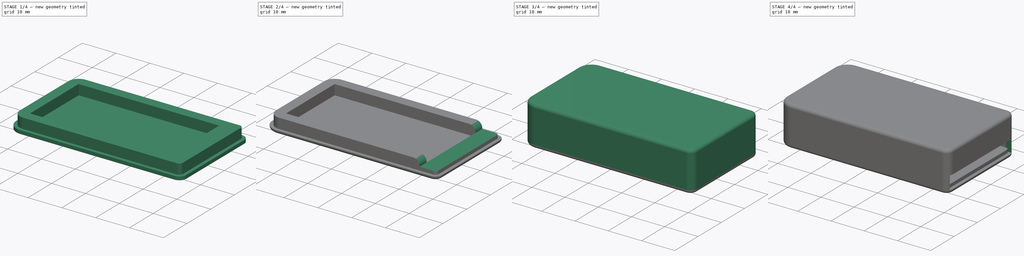
[diagram: build sequence overview — one tinted view per stage of 4, left to right]
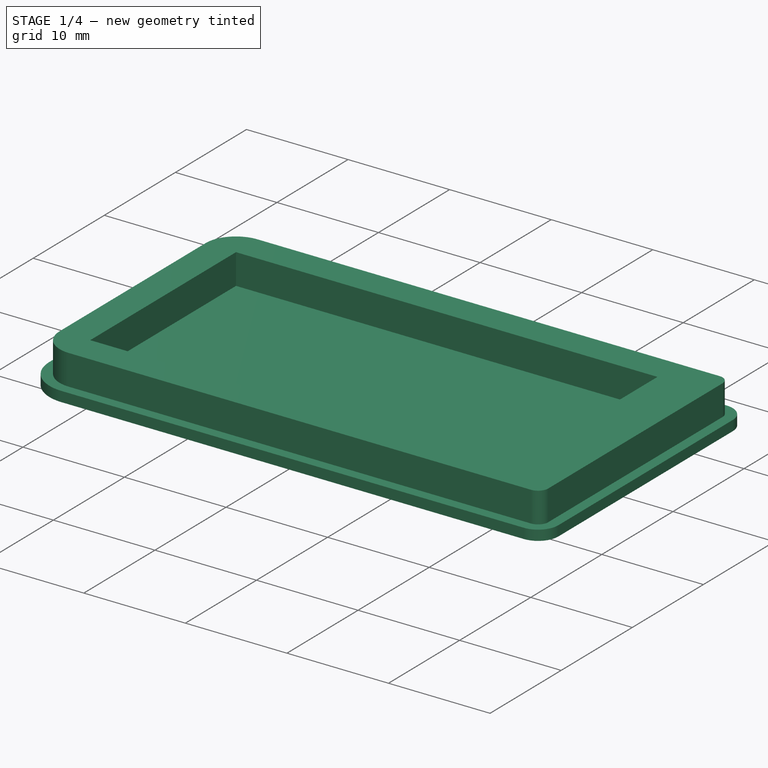
[diagram: stage 1 of 4 — iso view after this stage's code; geometry added in this stage tinted green]
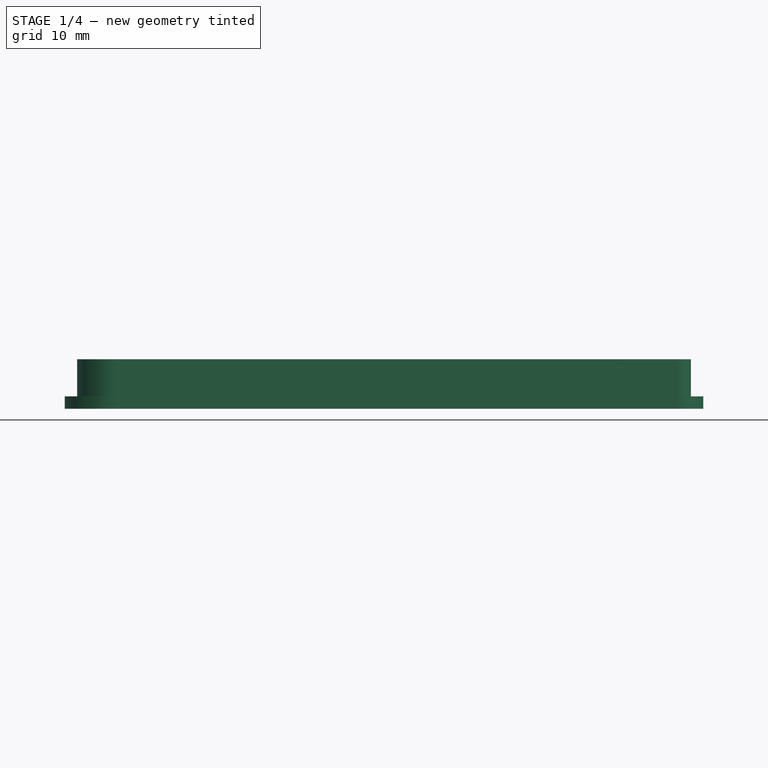
[diagram: stage 1 of 4 — front view after this stage's code; geometry added in this stage tinted green]
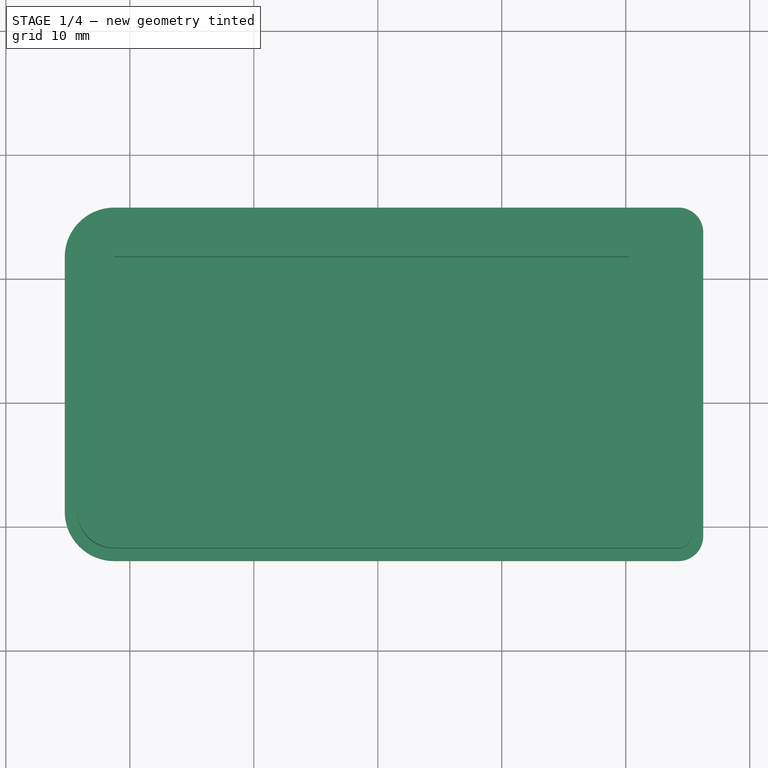
[diagram: stage 1 of 4 — top view after this stage's code; geometry added in this stage tinted green]
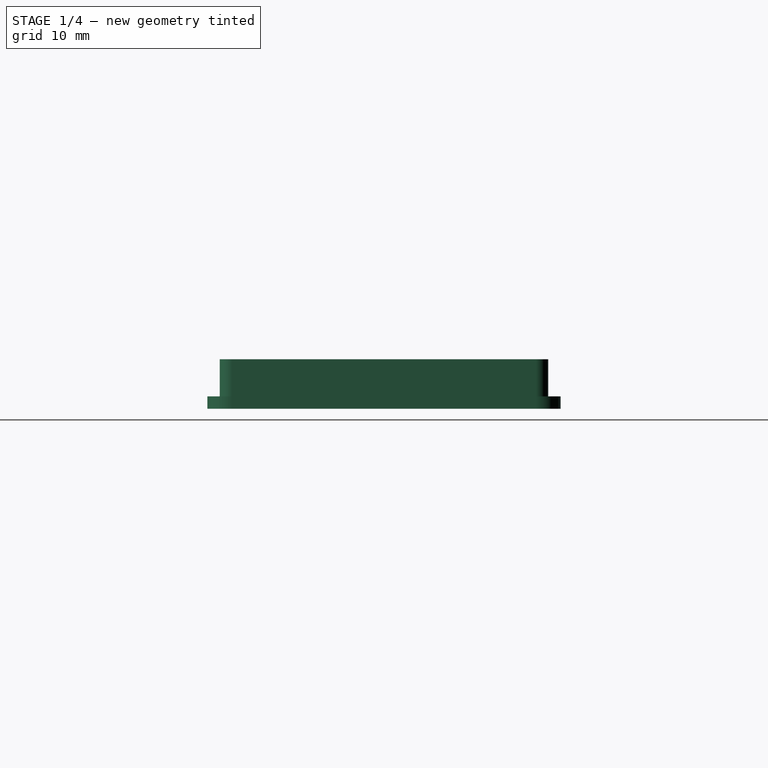
[diagram: stage 1 of 4 — right view after this stage's code; geometry added in this stage tinted green]
FCSTD DOCUMENT  (FreeCAD 0.20R29177 +426 (Git))
Label: UINIO-Logic-24MHz-Shells
License: All rights reserved
LicenseURL: http://en.wikipedia.org/wiki/All_rights_reserved
objects: Sketcher::SketchObject×9, PartDesign::Pocket×5, PartDesign::Pad×4, PartDesign::Body×2, PartDesign::Fillet×2, PartDesign::Thickness×1, App::Part×1
note: 35 computed .brp shape members not serialized (recipe doc carries the construction recipe); baked Part::Feature solids carry a one-line shape summary decoded from their .brp

FEATURE [Sketcher::SketchObject] Sketch004
  FullyConstrained = true
  MapMode = 5
  Support = -> [XY_Plane002]
  sketch-geometry (8):
    g0: LineSegment StartX=-21.25 StartY=14.75 StartZ=0 EndX=24.25 EndY=14.75 EndZ=0
    g1: LineSegment StartX=25.25 StartY=13.75 StartZ=0 EndX=25.25 EndY=-10.75 EndZ=0
    g2: LineSegment StartX=24.25 StartY=-11.75 StartZ=0 EndX=-21.25 EndY=-11.75 EndZ=0
    g3: LineSegment StartX=-24.25 StartY=-8.75 StartZ=0 EndX=-24.25 EndY=11.75 EndZ=0
    g4: ArcOfCircle CenterX=24.25 CenterY=13.75 CenterZ=0 NormalX=0 NormalY=0 NormalZ=1 AngleXU=0 Radius=1 StartAngle=2e-16 EndAngle=1.5708
    g5: ArcOfCircle CenterX=-21.25 CenterY=11.75 CenterZ=0 NormalX=0 NormalY=0 NormalZ=1 AngleXU=0 Radius=3 StartAngle=1.5708 EndAngle=3.14159
    g6: ArcOfCircle CenterX=-21.25 CenterY=-8.75 CenterZ=0 NormalX=0 NormalY=0 NormalZ=1 AngleXU=0 Radius=3 StartAngle=3.14159 EndAngle=4.71239
    g7: ArcOfCircle CenterX=24.25 CenterY=-10.75 CenterZ=0 NormalX=0 NormalY=0 NormalZ=1 AngleXU=0 Radius=1 StartAngle=4.71239 EndAngle=6.28319
  constraints (19):
    c: Horizontal(g0)
    c: Horizontal(g2)
    c: Vertical(g1)
    c: Vertical(g3)
    c: Tangent(g0,g4) = 1.5708
    c: Tangent(g1,g4) = 1.5708
    c: Tangent(g0,g5) = 1.5708
    c: Tangent(g3,g5) = 1.5708
    c: Tangent(g2,g6) = 1.5708
    c: Tangent(g3,g6) = 1.5708
    c: Tangent(g1,g7) = 1.5708
    c: Tangent(g2,g7) = 1.5708
    c: Radius(g5) = 3
    c: Radius(g4) = 1
    c: Radius(g7) = 1
    c: Radius(g6) = 3
    c: Symmetric(g3,g2,g-1)
    c: Distance(g0,g2) = 26.5
    c: Distance(g3,g1) = 49.5
FEATURE [PartDesign::Pad] Pad002
  Direction = (0,0,1)
  Length = 3
  Length2 = 10
  Profile = -> Sketch004
  ReferenceAxis = -> Sketch004 [N_Axis]
  Type = 0
FEATURE [Sketcher::SketchObject] Sketch005
  ExternalGeometry = -> [Pad002]
  FullyConstrained = true
  MapMode = 5
  Placement = pos=(0,0,0) rot=(1,0,0;3.14159rad)
  Support = -> [Pad002]
  sketch-geometry (8):
    g0: LineSegment StartX=-21.25 StartY=12.75 StartZ=0 EndX=24.25 EndY=12.75 EndZ=0
    g1: LineSegment StartX=26.25 StartY=10.75 StartZ=0 EndX=26.25 EndY=-13.75 EndZ=0
    g2: LineSegment StartX=24.25 StartY=-15.75 StartZ=0 EndX=-21.25 EndY=-15.75 EndZ=0
    g3: LineSegment StartX=-25.25 StartY=-11.75 StartZ=0 EndX=-25.25 EndY=8.75 EndZ=0
    g4: ArcOfCircle CenterX=-21.25 CenterY=-11.75 CenterZ=0 NormalX=0 NormalY=0 NormalZ=1 AngleXU=0 Radius=4 StartAngle=3.14159 EndAngle=4.71239
    g5: ArcOfCircle CenterX=-21.25 CenterY=8.75 CenterZ=0 NormalX=0 NormalY=0 NormalZ=1 AngleXU=0 Radius=4 StartAngle=1.5708 EndAngle=3.14159
    g6: ArcOfCircle CenterX=24.25 CenterY=10.75 CenterZ=0 NormalX=0 NormalY=0 NormalZ=1 AngleXU=0 Radius=2 StartAngle=0 EndAngle=1.5708
    g7: ArcOfCircle CenterX=24.25 CenterY=-13.75 CenterZ=0 NormalX=0 NormalY=0 NormalZ=1 AngleXU=0 Radius=2 StartAngle=4.71239 EndAngle=6.28319
  constraints (20):
    c: Horizontal(g0)
    c: Horizontal(g2)
    c: Vertical(g1)
    c: Vertical(g3)
    c: Distance(g-6,g3) = 1
    c: Distance(g-4,g0) = 1
    c: Distance(g-3,g1) = 1
    c: Distance(g-5,g2) = 1
    c: Tangent(g2,g4) = 1.5708
    c: Tangent(g3,g4) = 1.5708
    c: Tangent(g0,g5) = 1.5708
    c: Tangent(g3,g5) = 1.5708
    c: Tangent(g0,g6) = 1.5708
    c: Tangent(g1,g6) = 1.5708
    c: Tangent(g1,g7) = 1.5708
    c: Tangent(g2,g7) = 1.5708
    c: Radius(g5) = 4
    c: Radius(g4) = 4
    c: Radius(g7) = 2
    c: Radius(g6) = 2
FEATURE [PartDesign::Pad] Pad003
  BaseFeature = -> Pad002
  Direction = (0,0,-1)
  Length = 1
  Length2 = 10
  Profile = -> Sketch005
  ReferenceAxis = -> Sketch005 [N_Axis]
  Type = 0
FEATURE [PartDesign::Body] Body  label="Bottom"
  Group = -> [Sketch,Pad,Thickness,Sketch001,Pad001,Sketch002,Pocket,Sketch003,Pocket001,Sketch006,Pocket002]
  Origin = -> Origin001
  Tip = -> Pocket002
FEATURE [App::Part] Part
  Group = -> [Body]
  Origin = -> Origin
FEATURE [Sketcher::SketchObject] Sketch007
  ExternalGeometry = -> [Pad003]
  FullyConstrained = true
  MapMode = 5
  Placement = pos=(0,0,3) rot=(0,0,1;0rad)
  Support = -> [Pad003]
  sketch-geometry (4):
    g0: LineSegment StartX=-21.25 StartY=11.75 StartZ=0 EndX=20.25 EndY=11.75 EndZ=0
    g1: LineSegment StartX=20.25 StartY=11.75 StartZ=0 EndX=20.25 EndY=-8.75 EndZ=0
    g2: LineSegment StartX=20.25 StartY=-8.75 StartZ=0 EndX=-21.25 EndY=-8.75 EndZ=0
    g3: LineSegment StartX=-21.25 StartY=-8.75 StartZ=0 EndX=-21.25 EndY=11.75 EndZ=0
  constraints (12):
    c: Coincident(g0,g1)
    c: Coincident(g1,g2)
    c: Coincident(g2,g3)
    c: Coincident(g3,g0)
    c: Horizontal(g0)
    c: Horizontal(g2)
    c: Vertical(g1)
    c: Vertical(g3)
    c: Distance(g2,g-4) = 3
    c: Distance(g0,g-5) = 3
    c: Distance(g1,g-3) = 3
    c: Distance(g1,g-6) = 5
FEATURE [PartDesign::Pocket] Pocket003
  BaseFeature = -> Pad003
  Direction = (0,0,-1)
  Length = 3
  Length2 = 5
  Profile = -> Sketch007
  ReferenceAxis = -> Sketch007 [N_Axis]
  Type = 0
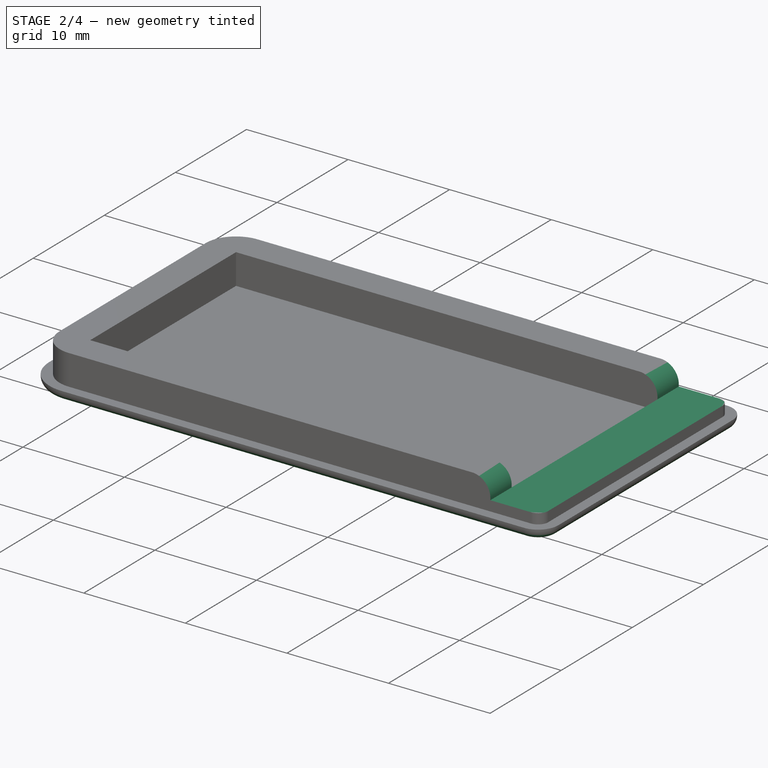
[diagram: stage 2 of 4 — iso view after this stage's code; geometry added in this stage tinted green]
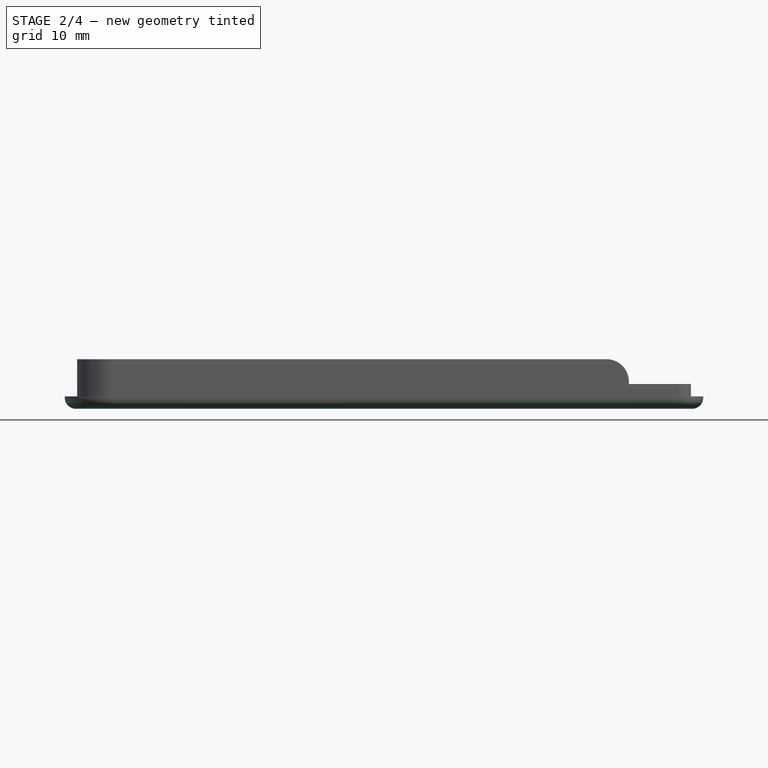
[diagram: stage 2 of 4 — front view after this stage's code; geometry added in this stage tinted green]
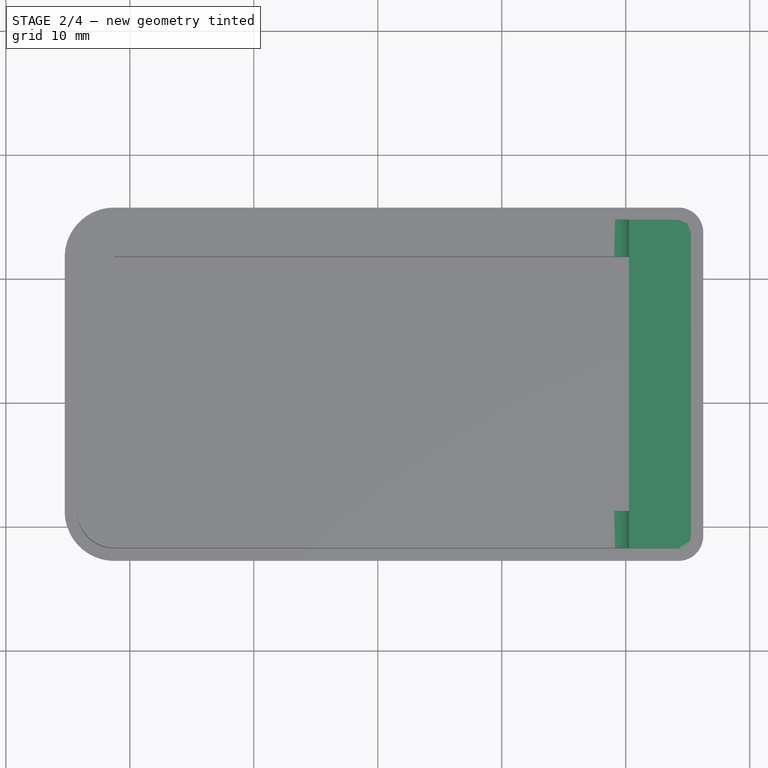
[diagram: stage 2 of 4 — top view after this stage's code; geometry added in this stage tinted green]
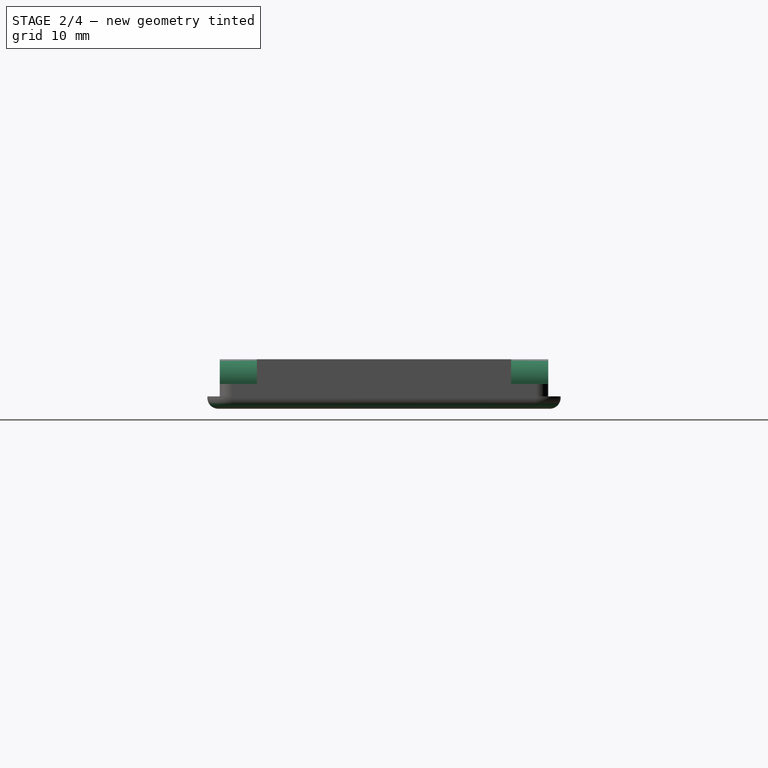
[diagram: stage 2 of 4 — right view after this stage's code; geometry added in this stage tinted green]
FEATURE [Sketcher::SketchObject] Sketch008
  ExternalGeometry = -> [Pocket003]
  FullyConstrained = true
  MapMode = 5
  Placement = pos=(0,0,3) rot=(0,0,1;0rad)
  Support = -> [Pocket003]
  sketch-geometry (4):
    g0: LineSegment StartX=20.25 StartY=14.75 StartZ=0 EndX=25.25 EndY=14.75 EndZ=0
    g1: LineSegment StartX=25.25 StartY=14.75 StartZ=0 EndX=25.25 EndY=-11.75 EndZ=0
    g2: LineSegment StartX=25.25 StartY=-11.75 StartZ=0 EndX=20.25 EndY=-11.75 EndZ=0
    g3: LineSegment StartX=20.25 StartY=-11.75 StartZ=0 EndX=20.25 EndY=14.75 EndZ=0
  constraints (12):
    c: Coincident(g0,g1)
    c: Coincident(g1,g2)
    c: Coincident(g2,g3)
    c: Coincident(g3,g0)
    c: Horizontal(g0)
    c: Horizontal(g2)
    c: Vertical(g1)
    c: Vertical(g3)
    c: PointOnObject(g1,g-3)
    c: PointOnObject(g2,g-5)
    c: Vertical(g2,g-4)
    c: PointOnObject(g0,g-6)
FEATURE [PartDesign::Pocket] Pocket004
  BaseFeature = -> Pocket003
  Direction = (0,0,-1)
  Length = 2
  Length2 = 5
  Profile = -> Sketch008
  ReferenceAxis = -> Sketch008 [N_Axis]
  Type = 0
FEATURE [PartDesign::Fillet] Fillet
  Base = -> Pocket004 [Edge53,Edge57]
  BaseFeature = -> Pocket004
  Radius = 1.8
  SupportTransform = false
  UseAllEdges = false
FEATURE [PartDesign::Fillet] Fillet001
  Base = -> Fillet [Edge67]
  BaseFeature = -> Fillet
  Radius = 0.9
  SupportTransform = false
  UseAllEdges = false
FEATURE [PartDesign::Body] Body001  label="Top"
  Group = -> [Sketch004,Pad002,Sketch005,Pad003,Sketch007,Pocket003,Sketch008,Pocket004,Fillet,Fillet001]
  Origin = -> Origin002
  Tip = -> Fillet001
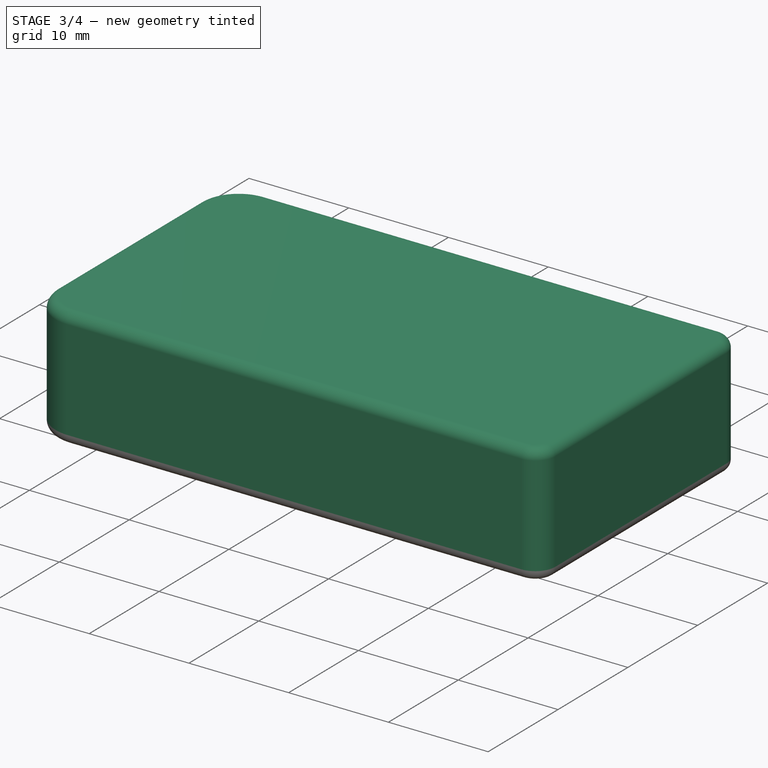
[diagram: stage 3 of 4 — iso view after this stage's code; geometry added in this stage tinted green]
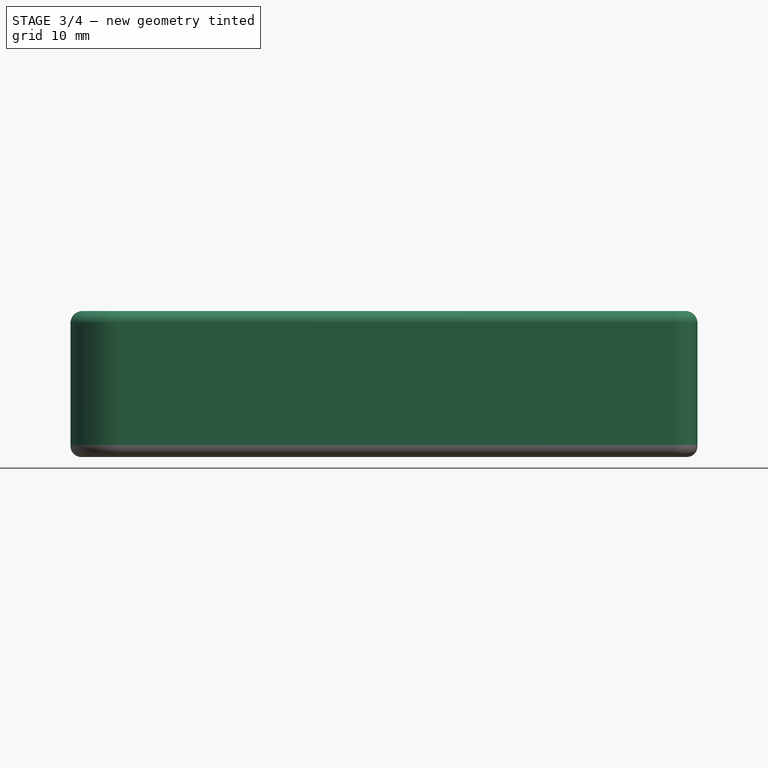
[diagram: stage 3 of 4 — front view after this stage's code; geometry added in this stage tinted green]
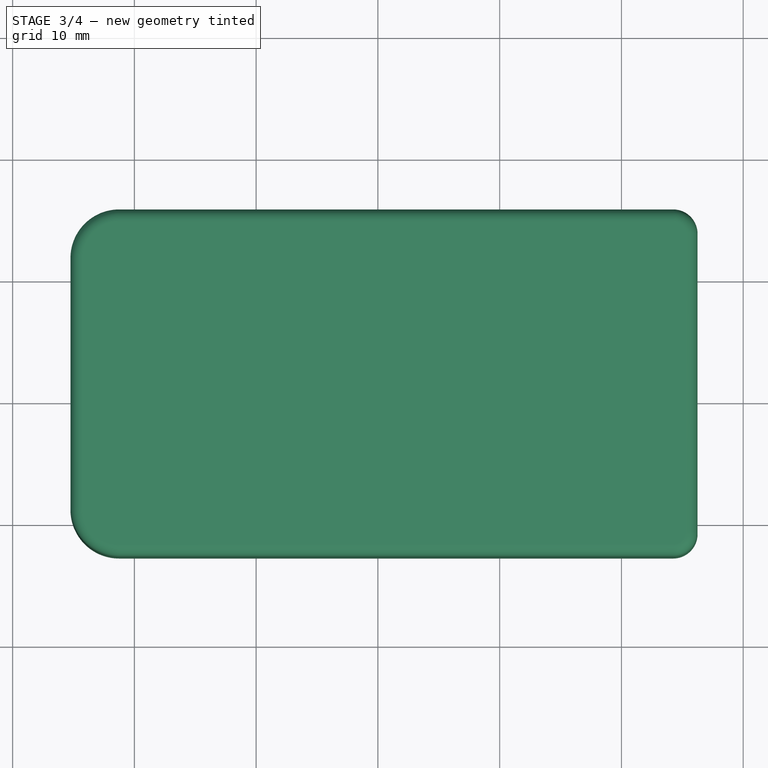
[diagram: stage 3 of 4 — top view after this stage's code; geometry added in this stage tinted green]
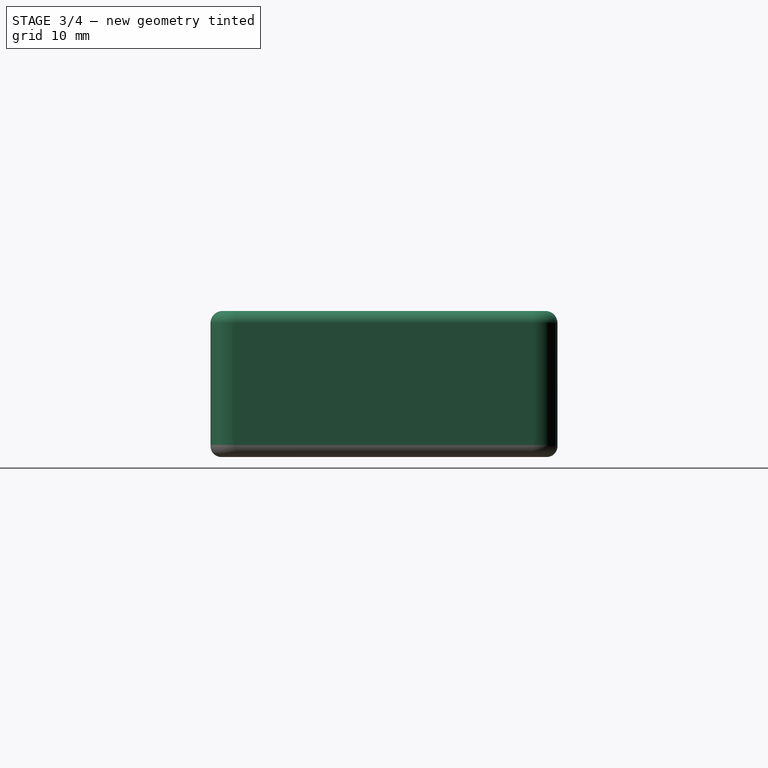
[diagram: stage 3 of 4 — right view after this stage's code; geometry added in this stage tinted green]
FEATURE [Sketcher::SketchObject] Sketch
  FullyConstrained = true
  MapMode = 5
  Support = -> [XY_Plane001]
  sketch-geometry (8):
    g0: LineSegment StartX=-21.25 StartY=14.75 StartZ=0 EndX=24.25 EndY=14.75 EndZ=0
    g1: LineSegment StartX=25.25 StartY=13.75 StartZ=0 EndX=25.25 EndY=-10.75 EndZ=0
    g2: LineSegment StartX=24.25 StartY=-11.75 StartZ=0 EndX=-21.25 EndY=-11.75 EndZ=0
    g3: LineSegment StartX=-24.25 StartY=-8.75 StartZ=0 EndX=-24.25 EndY=11.75 EndZ=0
    g4: ArcOfCircle CenterX=24.25 CenterY=13.75 CenterZ=0 NormalX=0 NormalY=0 NormalZ=1 AngleXU=0 Radius=1 StartAngle=2e-16 EndAngle=1.5708
    g5: ArcOfCircle CenterX=-21.25 CenterY=11.75 CenterZ=0 NormalX=0 NormalY=0 NormalZ=1 AngleXU=0 Radius=3 StartAngle=1.5708 EndAngle=3.14159
    g6: ArcOfCircle CenterX=-21.25 CenterY=-8.75 CenterZ=0 NormalX=0 NormalY=0 NormalZ=1 AngleXU=0 Radius=3 StartAngle=3.14159 EndAngle=4.71239
    g7: ArcOfCircle CenterX=24.25 CenterY=-10.75 CenterZ=0 NormalX=0 NormalY=0 NormalZ=1 AngleXU=0 Radius=1 StartAngle=4.71239 EndAngle=6.28319
  constraints (19):
    c: Horizontal(g0)
    c: Horizontal(g2)
    c: Vertical(g1)
    c: Vertical(g3)
    c: Tangent(g0,g4) = 1.5708
    c: Tangent(g1,g4) = 1.5708
    c: Tangent(g0,g5) = 1.5708
    c: Tangent(g3,g5) = 1.5708
    c: Tangent(g2,g6) = 1.5708
    c: Tangent(g3,g6) = 1.5708
    c: Tangent(g1,g7) = 1.5708
    c: Tangent(g2,g7) = 1.5708
    c: Radius(g5) = 3
    c: Radius(g4) = 1
    c: Radius(g7) = 1
    c: Radius(g6) = 3
    c: Symmetric(g3,g2,g-1)
    c: Distance(g0,g2) = 26.5
    c: Distance(g3,g1) = 49.5
FEATURE [PartDesign::Pad] Pad
  Direction = (0,0,1)
  Length = 10
  Length2 = 10
  Profile = -> Sketch
  ReferenceAxis = -> Sketch [N_Axis]
  Type = 0
FEATURE [PartDesign::Thickness] Thickness
  Base = -> Pad [Face9]
  BaseFeature = -> Pad
  Intersection = false
  Join = 0
  Mode = 0
  SupportTransform = false
  Value = 1
FEATURE [Sketcher::SketchObject] Sketch001
  ExternalGeometry = -> [Thickness]
  FullyConstrained = true
  MapMode = 5
  Placement = pos=(0,0,10) rot=(1,0,0;3.14159rad)
  Support = -> [Thickness]
  sketch-geometry (18):
    g0: LineSegment StartX=-21.25 StartY=11.75 StartZ=0 EndX=-17.25 EndY=11.75 EndZ=0
    g1: LineSegment StartX=-17.25 StartY=11.75 StartZ=0 EndX=-17.25 EndY=4.75 EndZ=0
    g2: LineSegment StartX=-17.25 StartY=4.75 StartZ=0 EndX=-24.25 EndY=4.75 EndZ=0
    g3: LineSegment StartX=-24.25 StartY=4.75 StartZ=0 EndX=-24.25 EndY=8.75 EndZ=0
    g4: ArcOfCircle CenterX=-21.25 CenterY=8.75 CenterZ=0 NormalX=0 NormalY=0 NormalZ=1 AngleXU=0 Radius=3 StartAngle=1.5708 EndAngle=3.14159
    g5: LineSegment StartX=-24.25 StartY=-7.75 StartZ=0 EndX=-17.25 EndY=-7.75 EndZ=0
    g6: LineSegment StartX=-17.25 StartY=-7.75 StartZ=0 EndX=-17.25 EndY=-14.75 EndZ=0
    g7: LineSegment StartX=-17.25 StartY=-14.75 StartZ=0 EndX=-21.25 EndY=-14.75 EndZ=0
    g8: LineSegment StartX=-24.25 StartY=-11.75 StartZ=0 EndX=-24.25 EndY=-7.75 EndZ=0
    g9: ArcOfCircle CenterX=-21.25 CenterY=-11.75 CenterZ=0 NormalX=0 NormalY=0 NormalZ=1 AngleXU=0 Radius=3 StartAngle=3.14159 EndAngle=4.71239
    g10: LineSegment StartX=12.25 StartY=-7.75 StartZ=0 EndX=22.25 EndY=-7.75 EndZ=0
    g11: LineSegment StartX=22.25 StartY=-7.75 StartZ=0 EndX=22.25 EndY=-14.75 EndZ=0
    g12: LineSegment StartX=22.25 StartY=-14.75 StartZ=0 EndX=12.25 EndY=-14.75 EndZ=0
    g13: LineSegment StartX=12.25 StartY=-14.75 StartZ=0 EndX=12.25 EndY=-7.75 EndZ=0
    g14: LineSegment StartX=12.25 StartY=11.75 StartZ=0 EndX=22.25 EndY=11.75 EndZ=0
    g15: LineSegment StartX=22.25 StartY=11.75 StartZ=0 EndX=22.25 EndY=4.75 EndZ=0
    g16: LineSegment StartX=22.25 StartY=4.75 StartZ=0 EndX=12.25 EndY=4.75 EndZ=0
    g17: LineSegment StartX=12.25 StartY=4.75 StartZ=0 EndX=12.25 EndY=11.75 EndZ=0
  constraints (50):
    c: Coincident(g0,g1)
    c: Coincident(g1,g2)
    c: Coincident(g2,g3)
    c: Horizontal(g0)
    c: Horizontal(g2)
    c: Vertical(g1)
    c: Vertical(g3)
    c: Tangent(g0,g4) = 1.5708
    c: Tangent(g3,g4) = 1.5708
    c: Radius(g4) = 3
    c: Coincident(g3,g-6)
    c: DistanceY(g1,g1) = 7
    c: DistanceX(g2,g2) = 7
    c: Coincident(g5,g6)
    c: Coincident(g6,g7)
    c: Coincident(g8,g5)
    c: Horizontal(g5)
    c: Horizontal(g7)
    c: Vertical(g6)
    c: Vertical(g8)
    c: Tangent(g7,g9) = 1.5708
    c: Tangent(g8,g9) = 1.5708
    c: Radius(g9) = 3
    c: Coincident(g8,g-6)
    c: DistanceX(g5,g5) = 7
    c: DistanceY(g6,g6) = 7
    c: Coincident(g10,g11)
    c: Coincident(g12,g13)
    c: Coincident(g13,g10)
    c: Horizontal(g10)
    c: Horizontal(g12)
    c: Vertical(g11)
    c: Vertical(g13)
    c: Coincident(g15,g16)
    c: Coincident(g16,g17)
    c: Coincident(g17,g14)
    c: Horizontal(g14)
    c: Horizontal(g16)
    c: Vertical(g15)
    c: Vertical(g17)
    c: DistanceX(g16,g16) = 10
    c: DistanceY(g17,g17) = 7
    c: DistanceX(g10,g10) = 10
    c: DistanceY(g13,g13) = 7
    c: Distance(g-3,g15) = 2
    c: Coincident(g12,g11)
    c: Distance(g-4,g11) = 2
    c: PointOnObject(g11,g-4)
    c: PointOnObject(g14,g-3)
    c: Coincident(g15,g14)
FEATURE [PartDesign::Pad] Pad001
  BaseFeature = -> Thickness
  Direction = (0,0,-1)
  Length = 1.6
  Length2 = 10
  Profile = -> Sketch001
  ReferenceAxis = -> Sketch001 [N_Axis]
  Type = 0
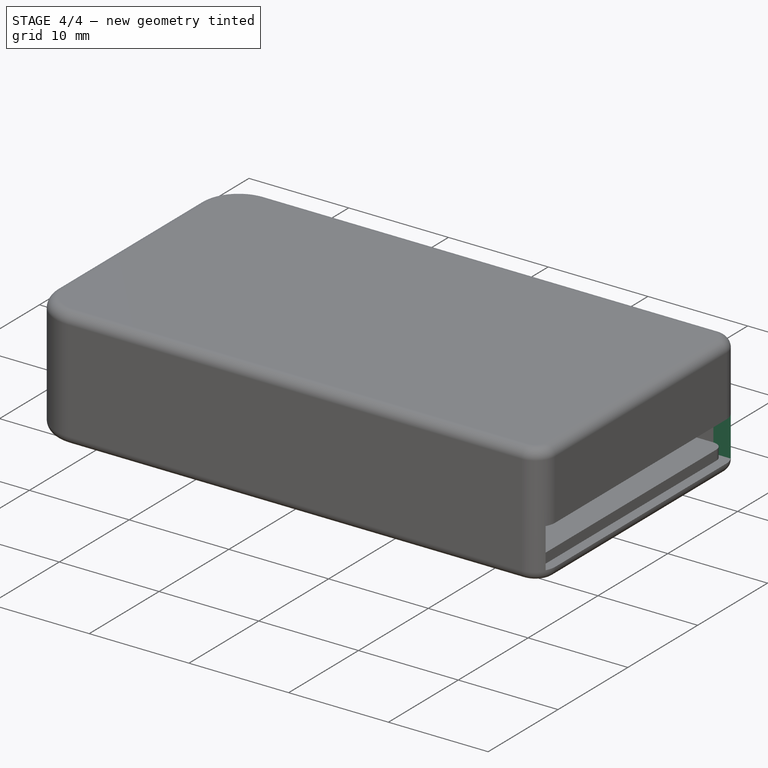
[diagram: stage 4 of 4 — iso view after this stage's code; geometry added in this stage tinted green]
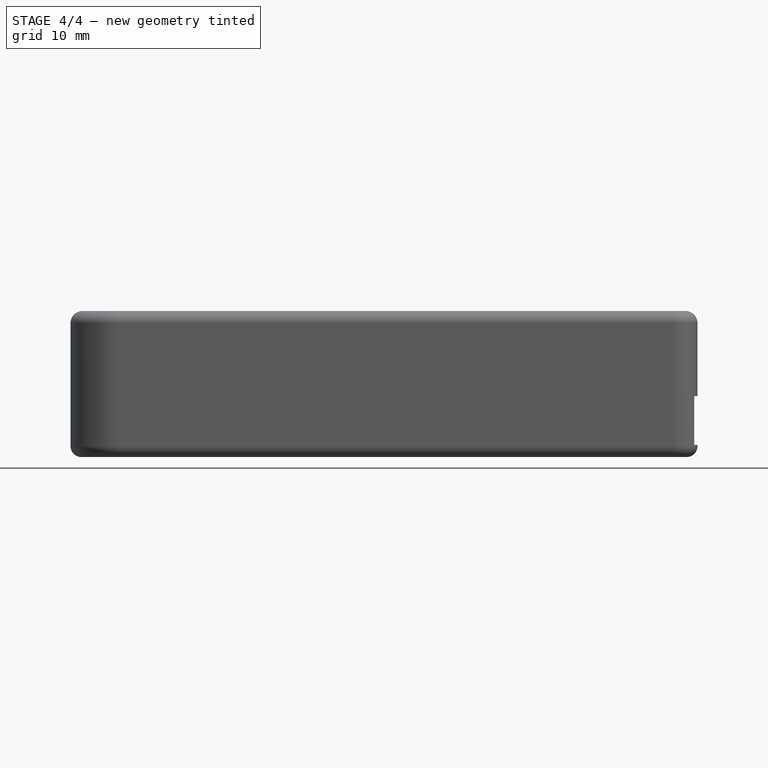
[diagram: stage 4 of 4 — front view after this stage's code; geometry added in this stage tinted green]
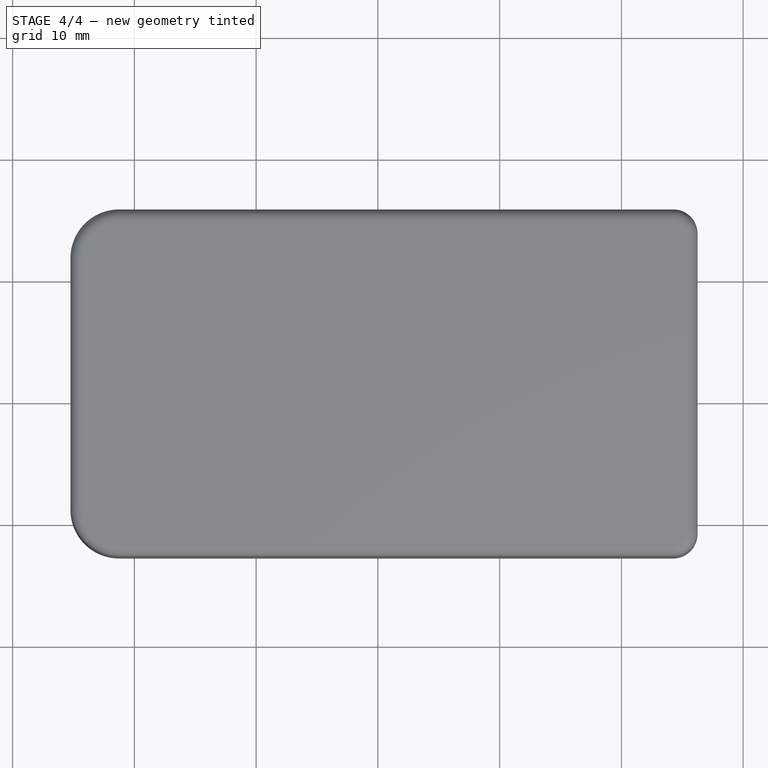
[diagram: stage 4 of 4 — top view after this stage's code; geometry added in this stage tinted green]
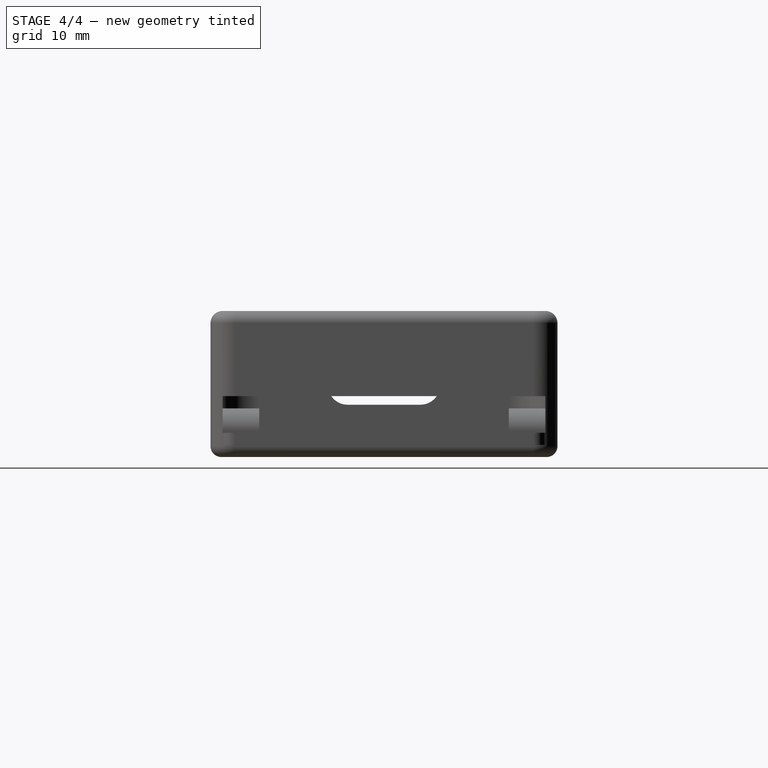
[diagram: stage 4 of 4 — right view after this stage's code; geometry added in this stage tinted green]
FEATURE [Sketcher::SketchObject] Sketch002
  ExternalGeometry = -> [Pad001]
  FullyConstrained = true
  MapMode = 5
  Placement = pos=(25.25,0,0) rot=(0.57735,-0.57735,-0.57735;2.0944rad)
  Support = -> [Pad001]
  sketch-geometry (4):
    g0: LineSegment StartX=-13.75 StartY=4 StartZ=0 EndX=10.75 EndY=4 EndZ=0
    g1: LineSegment StartX=10.75 StartY=4 StartZ=0 EndX=10.75 EndY=0 EndZ=0
    g2: LineSegment StartX=10.75 StartY=0 StartZ=0 EndX=-13.75 EndY=0 EndZ=0
    g3: LineSegment StartX=-13.75 StartY=0 StartZ=0 EndX=-13.75 EndY=4 EndZ=0
  constraints (11):
    c: Coincident(g0,g1)
    c: Coincident(g1,g2)
    c: Coincident(g3,g0)
    c: Horizontal(g0)
    c: Horizontal(g2)
    c: Vertical(g1)
    c: Vertical(g3)
    c: PointOnObject(g0,g-6)
    c: Distance(g0,g-3) = 6
    c: Coincident(g2,g-7)
    c: Coincident(g3,g2)
FEATURE [PartDesign::Pocket] Pocket
  BaseFeature = -> Pad001
  Direction = (1,0,0)
  Length = 0
  Length2 = 5
  Profile = -> Sketch002
  ReferenceAxis = -> Sketch002 [N_Axis]
  Type = 2
FEATURE [Sketcher::SketchObject] Sketch003
  ExternalGeometry = -> [Pocket]
  FullyConstrained = true
  MapMode = 5
  Placement = pos=(-24.25,0,0) rot=(0.57735,0.57735,0.57735;2.0944rad)
  Support = -> [Pocket]
  sketch-geometry (4):
    g0: ArcOfCircle CenterX=-1.5 CenterY=4.9 CenterZ=0 NormalX=0 NormalY=0 NormalZ=1 AngleXU=0 Radius=1.6 StartAngle=1.5708 EndAngle=4.71239
    g1: ArcOfCircle CenterX=4.5 CenterY=4.9 CenterZ=0 NormalX=0 NormalY=0 NormalZ=1 AngleXU=0 Radius=1.6 StartAngle=4.71239 EndAngle=7.85398
    g2: LineSegment StartX=-1.5 StartY=3.3 StartZ=0 EndX=4.5 EndY=3.3 EndZ=0
    g3: LineSegment StartX=4.5 StartY=6.5 StartZ=0 EndX=-1.5 EndY=6.5 EndZ=0
  constraints (11):
    c: Tangent(g0,g2) = -1.5708
    c: Tangent(g2,g1) = -1.5708
    c: Tangent(g1,g3) = -1.5708
    c: Tangent(g3,g0) = -1.5708
    c: Equal(g0,g1)
    c: Horizontal(g2)
    c: Distance(g0,g1) = 6
    c: Distance(g0,g-4) = 3.5
    c: Radius(g0) = 1.6
    c: Distance(g-5,g-3) = 20.5
    c: Distance(g0,g-5) = 7.25
FEATURE [PartDesign::Pocket] Pocket001
  BaseFeature = -> Pocket
  Direction = (-1,0,0)
  Length = 5
  Length2 = 5
  Profile = -> Sketch003
  ReferenceAxis = -> Sketch003 [N_Axis]
  Type = 0
FEATURE [Sketcher::SketchObject] Sketch006
  ExternalGeometry = -> [Pocket001]
  FullyConstrained = true
  MapMode = 5
  Placement = pos=(26.25,0,0) rot=(0.57735,0.57735,0.57735;2.0944rad)
  Support = -> [Pocket001]
  sketch-geometry (4):
    g0: LineSegment StartX=-11.75 StartY=4 StartZ=0 EndX=14.75 EndY=4 EndZ=0
    g1: LineSegment StartX=14.75 StartY=4 StartZ=0 EndX=14.75 EndY=0 EndZ=0
    g2: LineSegment StartX=14.75 StartY=0 StartZ=0 EndX=-11.75 EndY=0 EndZ=0
    g3: LineSegment StartX=-11.75 StartY=0 StartZ=0 EndX=-11.75 EndY=4 EndZ=0
  constraints (12):
    c: Coincident(g0,g1)
    c: Coincident(g1,g2)
    c: Coincident(g2,g3)
    c: Coincident(g3,g0)
    c: Horizontal(g0)
    c: Horizontal(g2)
    c: Vertical(g1)
    c: Vertical(g3)
    c: PointOnObject(g1,g-1)
    c: PointOnObject(g0,g-3)
    c: Distance(g0,g-5) = 1
    c: Distance(g0,g-4) = 1
FEATURE [PartDesign::Pocket] Pocket002
  BaseFeature = -> Pocket001
  Direction = (-1,0,0)
  Length = 5
  Length2 = 5
  Profile = -> Sketch006
  ReferenceAxis = -> Sketch006 [N_Axis]
  Type = 0
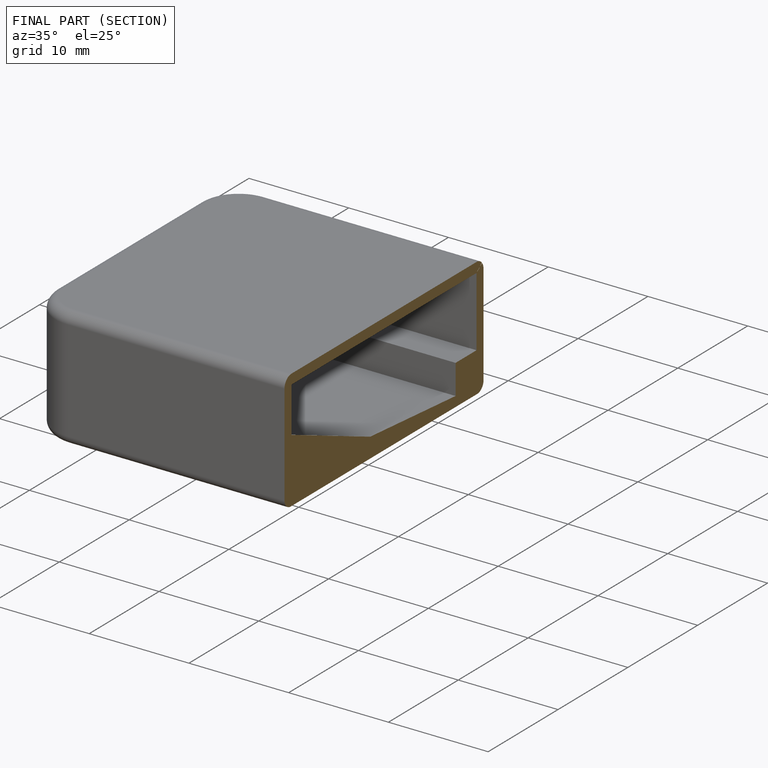
[diagram: finished part — half-section view (interior)]
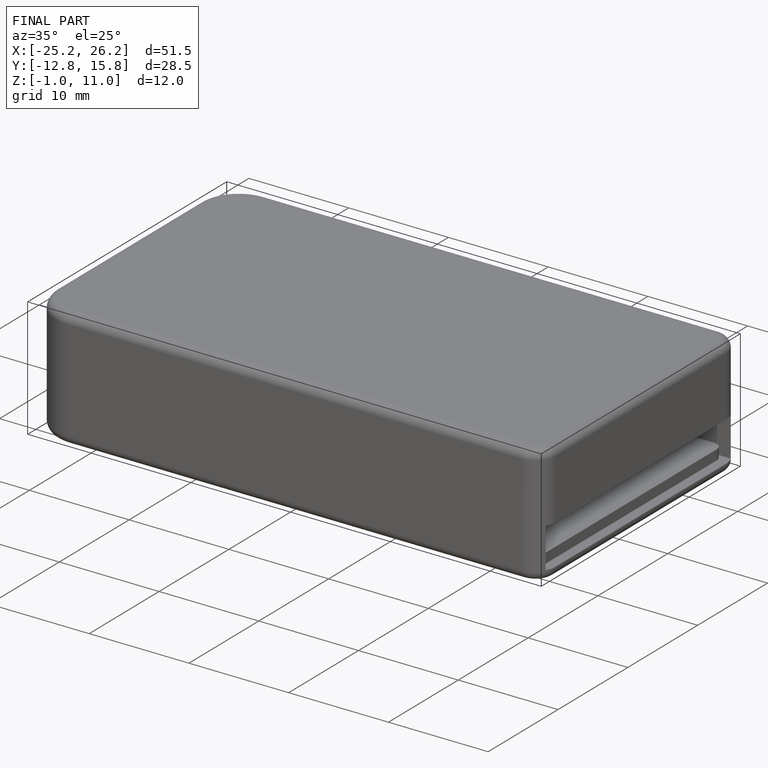
[diagram: finished part — iso view with bounding-box wireframe]
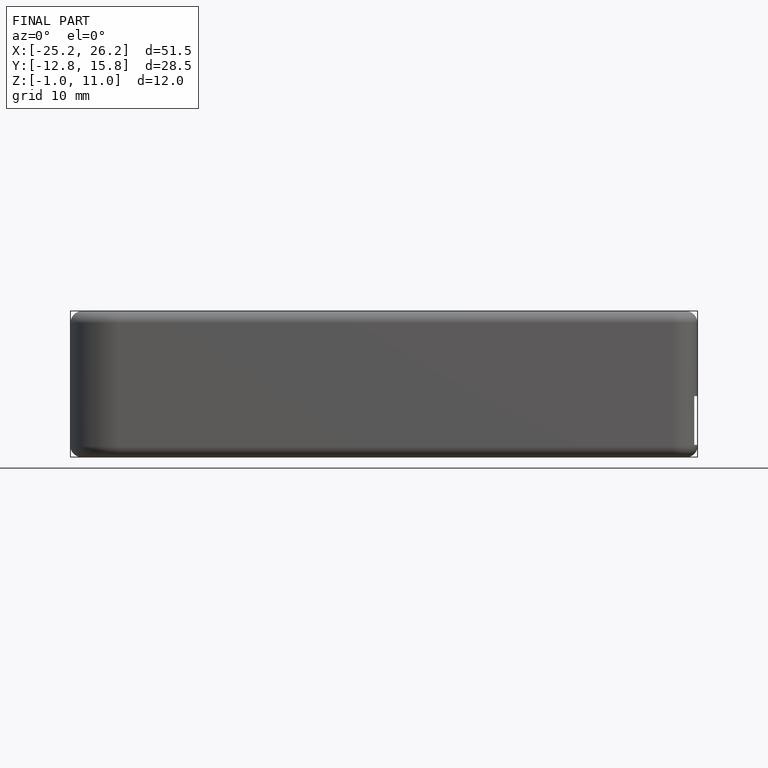
[diagram: finished part — front view with bounding-box wireframe]
